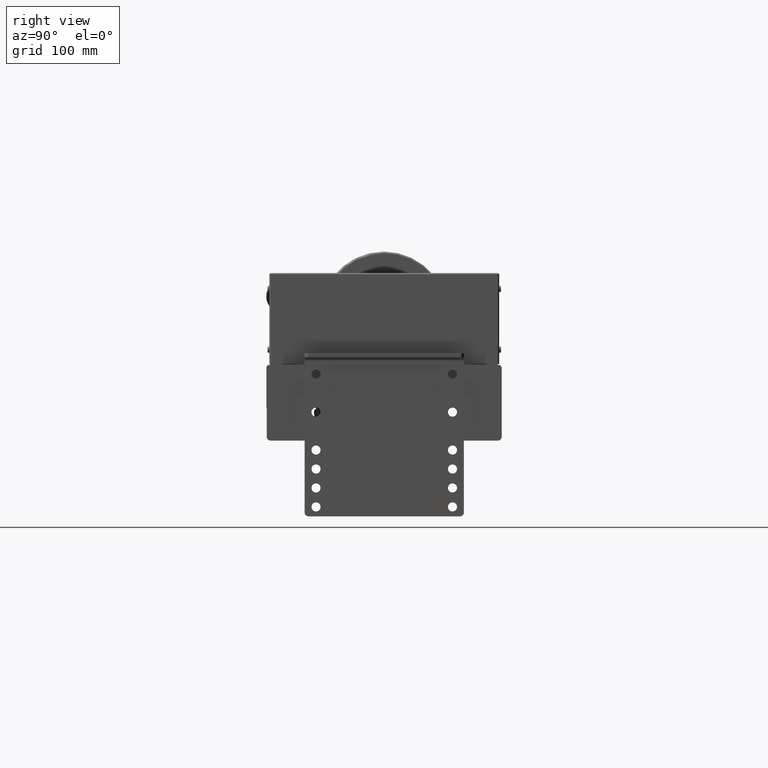
[diagram: clean part render]
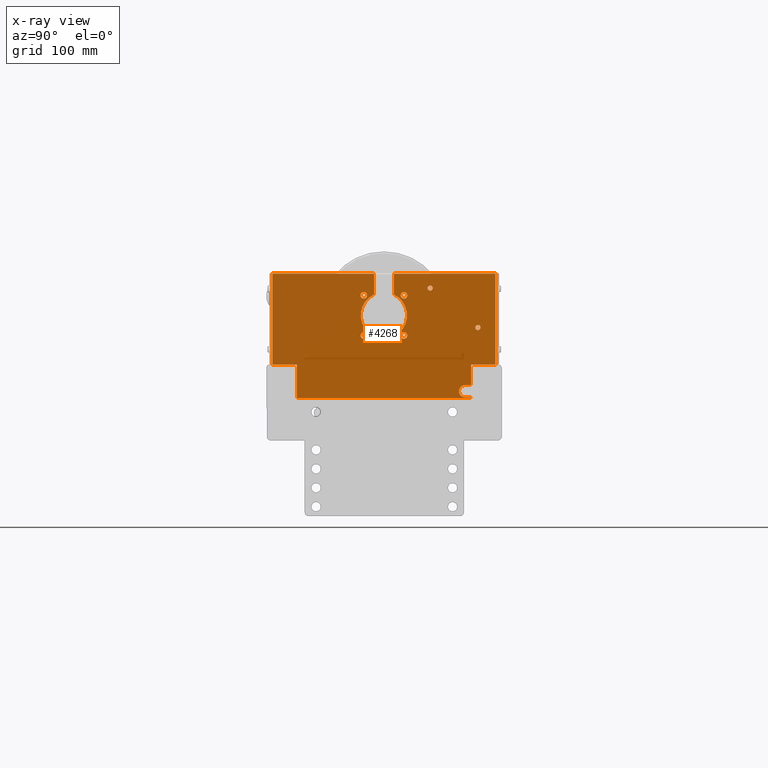
[diagram: x-ray — body ghosted, one internal face saturated and labeled with its STEP entity id]
A machine part, right view, then the same camera in x-ray: the body is ghosted and one INTERNAL B-rep face — a face not visible from any outside direction — is saturated and labeled: STEP entity #4268.
In plain terms, the highlighted planar face has unit normal (-1, -0, 0).
Its self-contained STEP definition (entity closure, byte-faithful):
#2570=CARTESIAN_POINT('',(-22.141504294496144,3.483495705504765,1.500000000000000));
#2571=VERTEX_POINT('',#2570);
#2580=CARTESIAN_POINT('',(-30.891504294496144,3.483495705504765,1.500000000000000));
#2581=VERTEX_POINT('',#2580);
#2582=CARTESIAN_POINT('',(-26.516504294496144,3.483495705504765,1.500000000000000));
#2583=DIRECTION('',(0.0,0.0,1.0));
#2584=DIRECTION('',(1.0,0.0,0.0));
#2585=AXIS2_PLACEMENT_3D('',#2582,#2583,#2584);
#2586=CIRCLE('',#2585,4.375000000000000);
#2587=EDGE_CURVE('',#2571,#2581,#2586,.T.);
#2612=CARTESIAN_POINT('',(30.891504294494780,3.483495705504765,1.500000000000000));
#2613=VERTEX_POINT('',#2612);
#2622=CARTESIAN_POINT('',(22.141504294494780,3.483495705504765,1.500000000000000));
#2623=VERTEX_POINT('',#2622);
#2624=CARTESIAN_POINT('',(26.516504294494780,3.483495705504765,1.500000000000000));
#2625=DIRECTION('',(0.0,0.0,1.0));
#2626=DIRECTION('',(1.0,0.0,0.0));
#2627=AXIS2_PLACEMENT_3D('',#2624,#2625,#2626);
#2628=CIRCLE('',#2627,4.375000000000000);
#2629=EDGE_CURVE('',#2613,#2623,#2628,.T.);
#2654=CARTESIAN_POINT('',(30.891504294494780,56.516504294495917,1.500000000000000));
#2655=VERTEX_POINT('',#2654);
#2664=CARTESIAN_POINT('',(22.141504294494780,56.516504294495917,1.500000000000000));
#2665=VERTEX_POINT('',#2664);
#2666=CARTESIAN_POINT('',(26.516504294494780,56.516504294495917,1.500000000000000));
#2667=DIRECTION('',(0.0,0.0,1.0));
#2668=DIRECTION('',(1.0,0.0,0.0));
#2669=AXIS2_PLACEMENT_3D('',#2666,#2667,#2668);
#2670=CIRCLE('',#2669,4.375000000000000);
#2671=EDGE_CURVE('',#2655,#2665,#2670,.T.);
#2696=CARTESIAN_POINT('',(-22.141504294496372,56.516504294495917,1.500000000000000));
#2697=VERTEX_POINT('',#2696);
#2706=CARTESIAN_POINT('',(-30.891504294496372,56.516504294495917,1.500000000000000));
#2707=VERTEX_POINT('',#2706);
#2708=CARTESIAN_POINT('',(-26.516504294496372,56.516504294495917,1.500000000000000));
#2709=DIRECTION('',(0.0,0.0,1.0));
#2710=DIRECTION('',(1.0,0.0,0.0));
#2711=AXIS2_PLACEMENT_3D('',#2708,#2709,#2710);
#2712=CIRCLE('',#2711,4.375000000000000);
#2713=EDGE_CURVE('',#2697,#2707,#2712,.T.);
#2824=CARTESIAN_POINT('',(-57.550000000000907,66.000000000000227,1.500000000000000));
#2825=VERTEX_POINT('',#2824);
#2841=CARTESIAN_POINT('',(-64.450000000000912,66.000000000000227,1.500000000000000));
#2842=VERTEX_POINT('',#2841);
#2849=CARTESIAN_POINT('',(-61.000000000000909,66.000000000000227,1.500000000000000));
#2850=DIRECTION('',(0.0,0.0,-1.0));
#2851=DIRECTION('',(1.0,0.0,0.0));
#2852=AXIS2_PLACEMENT_3D('',#2849,#2850,#2851);
#2853=CIRCLE('',#2852,3.450000000000000);
#2854=EDGE_CURVE('',#2825,#2842,#2853,.T.);
#2866=CARTESIAN_POINT('',(-120.550000000000910,14.000000000000227,1.500000000000000));
#2867=VERTEX_POINT('',#2866);
#2883=CARTESIAN_POINT('',(-127.450000000000910,14.000000000000227,1.500000000000000));
#2884=VERTEX_POINT('',#2883);
#2891=CARTESIAN_POINT('',(-124.000000000000910,14.000000000000227,1.500000000000000));
#2892=DIRECTION('',(0.0,0.0,-1.0));
#2893=DIRECTION('',(1.0,0.0,0.0));
#2894=AXIS2_PLACEMENT_3D('',#2891,#2892,#2893);
#2895=CIRCLE('',#2894,3.450000000000000);
#2896=EDGE_CURVE('',#2867,#2884,#2895,.T.);
#3166=CARTESIAN_POINT('',(114.999999999999090,-34.999999999999773,1.500000000000000));
#3167=VERTEX_POINT('',#3166);
#3174=CARTESIAN_POINT('',(115.0,-78.999999999999773,1.500000000000000));
#3175=VERTEX_POINT('',#3174);
#3176=CARTESIAN_POINT('',(114.999999999999090,-34.999999999999773,1.500000000000000));
#3177=DIRECTION('',(0.0,-1.0,0.0));
#3178=VECTOR('',#3177,44.0);
#3179=LINE('',#3176,#3178);
#3180=EDGE_CURVE('',#3167,#3175,#3179,.T.);
#3214=CARTESIAN_POINT('',(-115.000000000001360,-78.999999999999773,1.500000000000000));
#3215=VERTEX_POINT('',#3214);
#3232=CARTESIAN_POINT('',(115.0,-78.999999999999773,1.500000000000000));
#3233=DIRECTION('',(-1.0,0.0,0.0));
#3234=VECTOR('',#3233,230.000000000001360);
#3235=LINE('',#3232,#3234);
#3236=EDGE_CURVE('',#3175,#3215,#3235,.T.);
#3365=CARTESIAN_POINT('',(-124.000000000000910,14.000000000000227,1.500000000000000));
#3366=DIRECTION('',(0.0,0.0,-1.0));
#3367=DIRECTION('',(1.0,0.0,0.0));
#3368=AXIS2_PLACEMENT_3D('',#3365,#3366,#3367);
#3369=CIRCLE('',#3368,3.450000000000000);
#3370=EDGE_CURVE('',#2884,#2867,#3369,.T.);
#3389=CARTESIAN_POINT('',(-61.000000000000909,66.000000000000227,1.500000000000000));
#3390=DIRECTION('',(0.0,0.0,-1.0));
#3391=DIRECTION('',(1.0,0.0,0.0));
#3392=AXIS2_PLACEMENT_3D('',#3389,#3390,#3391);
#3393=CIRCLE('',#3392,3.450000000000000);
#3394=EDGE_CURVE('',#2842,#2825,#3393,.T.);
#3460=CARTESIAN_POINT('',(147.000000000000910,-34.999999999999773,1.500000000000000));
#3461=VERTEX_POINT('',#3460);
#3462=CARTESIAN_POINT('',(147.000000000000910,85.000000000000341,1.500000000000000));
#3463=VERTEX_POINT('',#3462);
#3464=CARTESIAN_POINT('',(147.000000000000910,-34.999999999999773,1.500000000000000));
#3465=DIRECTION('',(0.0,1.0,0.0));
#3466=VECTOR('',#3465,120.000000000000110);
#3467=LINE('',#3464,#3466);
#3468=EDGE_CURVE('',#3461,#3463,#3467,.T.);
#3543=CARTESIAN_POINT('',(-147.000000000000910,85.000000000000227,1.500000000000000));
#3544=VERTEX_POINT('',#3543);
#3545=CARTESIAN_POINT('',(-147.000000000001020,-34.999999999999773,1.500000000000000));
#3546=VERTEX_POINT('',#3545);
#3547=CARTESIAN_POINT('',(-147.000000000000910,85.000000000000227,1.500000000000000));
#3548=DIRECTION('',(0.0,-1.0,0.0));
#3549=VECTOR('',#3548,120.0);
#3550=LINE('',#3547,#3549);
#3551=EDGE_CURVE('',#3544,#3546,#3550,.T.);
#3649=CARTESIAN_POINT('',(12.999999999999091,85.000000000000455,1.500000000000000));
#3650=VERTEX_POINT('',#3649);
#3657=CARTESIAN_POINT('',(12.999999999999091,85.000000000000455,1.500000000000000));
#3658=DIRECTION('',(1.0,0.0,0.0));
#3659=VECTOR('',#3658,134.000000000001820);
#3660=LINE('',#3657,#3659);
#3661=EDGE_CURVE('',#3650,#3463,#3660,.T.);
#3679=CARTESIAN_POINT('',(147.000000000000910,-34.999999999999773,1.500000000000000));
#3680=DIRECTION('',(-1.0,0.0,0.0));
#3681=VECTOR('',#3680,32.000000000001819);
#3682=LINE('',#3679,#3681);
#3683=EDGE_CURVE('',#3461,#3167,#3682,.T.);
#3710=CARTESIAN_POINT('',(-13.000000000000682,85.000000000000227,1.500000000000000));
#3711=VERTEX_POINT('',#3710);
#3712=CARTESIAN_POINT('',(-147.000000000000910,85.000000000000227,1.500000000000000));
#3713=DIRECTION('',(1.0,0.0,0.0));
#3714=VECTOR('',#3713,134.000000000000230);
#3715=LINE('',#3712,#3714);
#3716=EDGE_CURVE('',#3544,#3711,#3715,.T.);
#3900=CARTESIAN_POINT('',(-115.000000000000910,-77.999999999999773,1.500000000000000));
#3901=VERTEX_POINT('',#3900);
#3902=CARTESIAN_POINT('',(-115.000000000001360,-78.999999999999773,1.500000000000000));
#3903=DIRECTION('',(4.547474E-013,1.0,0.0));
#3904=VECTOR('',#3903,1.0);
#3905=LINE('',#3902,#3904);
#3906=EDGE_CURVE('',#3215,#3901,#3905,.T.);
#3923=CARTESIAN_POINT('',(-13.000000000001137,57.590759322643180,1.500000000000000));
#3924=VERTEX_POINT('',#3923);
#3925=CARTESIAN_POINT('',(-13.000000000000682,85.000000000000227,1.500000000000000));
#3926=DIRECTION('',(0.0,-1.0,0.0));
#3927=VECTOR('',#3926,27.409240677357047);
#3928=LINE('',#3925,#3927);
#3929=EDGE_CURVE('',#3711,#3924,#3928,.T.);
#3947=CARTESIAN_POINT('',(12.999999999999091,57.590759322643180,1.500000000000000));
#3948=VERTEX_POINT('',#3947);
#3949=CARTESIAN_POINT('',(1.818989E-012,29.999999999996817,1.500000000000000));
#3950=DIRECTION('',(0.0,0.0,1.0));
#3951=DIRECTION('',(1.0,0.0,0.0));
#3952=AXIS2_PLACEMENT_3D('',#3949,#3950,#3951);
#3953=CIRCLE('',#3952,30.500000000000000);
#3954=EDGE_CURVE('',#3924,#3948,#3953,.T.);
#3972=CARTESIAN_POINT('',(12.999999999999091,57.590759322643180,1.500000000000000));
#3973=DIRECTION('',(0.0,1.0,0.0));
#3974=VECTOR('',#3973,27.409240677357275);
#3975=LINE('',#3972,#3974);
#3976=EDGE_CURVE('',#3948,#3650,#3975,.T.);
#4013=CARTESIAN_POINT('',(-107.000000000000910,-77.999999999999773,1.500000000000000));
#4014=VERTEX_POINT('',#4013);
#4015=CARTESIAN_POINT('',(-115.000000000000910,-77.999999999999773,1.500000000000000));
#4016=DIRECTION('',(1.0,0.0,0.0));
#4017=VECTOR('',#4016,8.0);
#4018=LINE('',#4015,#4017);
#4019=EDGE_CURVE('',#3901,#4014,#4018,.T.);
#4037=CARTESIAN_POINT('',(-107.000000000000910,-61.999999999999773,1.500000000000000));
#4038=VERTEX_POINT('',#4037);
#4039=CARTESIAN_POINT('',(-107.000000000000910,-69.999999999999773,1.500000000000000));
#4040=DIRECTION('',(0.0,0.0,1.0));
#4041=DIRECTION('',(1.0,0.0,0.0));
#4042=AXIS2_PLACEMENT_3D('',#4039,#4040,#4041);
#4043=CIRCLE('',#4042,8.0);
#4044=EDGE_CURVE('',#4014,#4038,#4043,.T.);
#4062=CARTESIAN_POINT('',(-115.000000000000910,-61.999999999999773,1.500000000000000));
#4063=VERTEX_POINT('',#4062);
#4064=CARTESIAN_POINT('',(-107.000000000000910,-61.999999999999773,1.500000000000000));
#4065=DIRECTION('',(-1.0,0.0,0.0));
#4066=VECTOR('',#4065,8.0);
#4067=LINE('',#4064,#4066);
#4068=EDGE_CURVE('',#4038,#4063,#4067,.T.);
#4086=CARTESIAN_POINT('',(-115.000000000000910,-34.999999999999773,1.500000000000000));
#4087=VERTEX_POINT('',#4086);
#4088=CARTESIAN_POINT('',(-115.000000000000910,-61.999999999999773,1.500000000000000));
#4089=DIRECTION('',(0.0,1.0,0.0));
#4090=VECTOR('',#4089,27.0);
#4091=LINE('',#4088,#4090);
#4092=EDGE_CURVE('',#4063,#4087,#4091,.T.);
#4112=CARTESIAN_POINT('',(-115.000000000000910,-34.999999999999773,1.500000000000000));
#4113=DIRECTION('',(-1.0,0.0,0.0));
#4114=VECTOR('',#4113,32.000000000000114);
#4115=LINE('',#4112,#4114);
#4116=EDGE_CURVE('',#4087,#3546,#4115,.T.);
#4157=CARTESIAN_POINT('',(-26.516504294496372,56.516504294495917,1.500000000000000));
#4158=DIRECTION('',(0.0,0.0,1.0));
#4159=DIRECTION('',(1.0,0.0,0.0));
#4160=AXIS2_PLACEMENT_3D('',#4157,#4158,#4159);
#4161=CIRCLE('',#4160,4.375000000000000);
#4162=EDGE_CURVE('',#2707,#2697,#4161,.T.);
#4175=CARTESIAN_POINT('',(26.516504294494780,56.516504294495917,1.500000000000000));
#4176=DIRECTION('',(0.0,0.0,1.0));
#4177=DIRECTION('',(1.0,0.0,0.0));
#4178=AXIS2_PLACEMENT_3D('',#4175,#4176,#4177);
#4179=CIRCLE('',#4178,4.375000000000000);
#4180=EDGE_CURVE('',#2665,#2655,#4179,.T.);
#4193=CARTESIAN_POINT('',(26.516504294494780,3.483495705504765,1.500000000000000));
#4194=DIRECTION('',(0.0,0.0,1.0));
#4195=DIRECTION('',(1.0,0.0,0.0));
#4196=AXIS2_PLACEMENT_3D('',#4193,#4194,#4195);
#4197=CIRCLE('',#4196,4.375000000000000);
#4198=EDGE_CURVE('',#2623,#2613,#4197,.T.);
#4211=CARTESIAN_POINT('',(-26.516504294496144,3.483495705504765,1.500000000000000));
#4212=DIRECTION('',(0.0,0.0,1.0));
#4213=DIRECTION('',(1.0,0.0,0.0));
#4214=AXIS2_PLACEMENT_3D('',#4211,#4212,#4213);
#4215=CIRCLE('',#4214,4.375000000000000);
#4216=EDGE_CURVE('',#2581,#2571,#4215,.T.);
#4221=CARTESIAN_POINT('',(-2.165992825263629,6.983821610617270,1.500000000000000));
#4222=DIRECTION('',(0.0,0.0,1.0));
#4223=DIRECTION('',(1.0,0.0,0.0));
#4224=AXIS2_PLACEMENT_3D('',#4221,#4222,#4223);
#4225=PLANE('',#4224);
#4226=ORIENTED_EDGE('',*,*,#3236,.F.);
#4227=ORIENTED_EDGE('',*,*,#3180,.F.);
#4228=ORIENTED_EDGE('',*,*,#3683,.F.);
#4229=ORIENTED_EDGE('',*,*,#3468,.T.);
#4230=ORIENTED_EDGE('',*,*,#3661,.F.);
#4231=ORIENTED_EDGE('',*,*,#3976,.F.);
#4232=ORIENTED_EDGE('',*,*,#3954,.F.);
#4233=ORIENTED_EDGE('',*,*,#3929,.F.);
#4234=ORIENTED_EDGE('',*,*,#3716,.F.);
#4235=ORIENTED_EDGE('',*,*,#3551,.T.);
#4236=ORIENTED_EDGE('',*,*,#4116,.F.);
#4237=ORIENTED_EDGE('',*,*,#4092,.F.);
#4238=ORIENTED_EDGE('',*,*,#4068,.F.);
#4239=ORIENTED_EDGE('',*,*,#4044,.F.);
#4240=ORIENTED_EDGE('',*,*,#4019,.F.);
#4241=ORIENTED_EDGE('',*,*,#3906,.F.);
#4242=EDGE_LOOP('',(#4226,#4227,#4228,#4229,#4230,#4231,#4232,#4233,#4234,#4235,#4236,#4237,#4238,#4239,#4240,#4241));
#4243=FACE_OUTER_BOUND('',#4242,.T.);
#4244=ORIENTED_EDGE('',*,*,#3370,.T.);
#4245=ORIENTED_EDGE('',*,*,#2896,.T.);
#4246=EDGE_LOOP('',(#4244,#4245));
#4247=FACE_BOUND('',#4246,.T.);
#4248=ORIENTED_EDGE('',*,*,#3394,.T.);
#4249=ORIENTED_EDGE('',*,*,#2854,.T.);
#4250=EDGE_LOOP('',(#4248,#4249));
#4251=FACE_BOUND('',#4250,.T.);
#4252=ORIENTED_EDGE('',*,*,#2587,.F.);
#4253=ORIENTED_EDGE('',*,*,#4216,.F.);
#4254=EDGE_LOOP('',(#4252,#4253));
#4255=FACE_BOUND('',#4254,.T.);
#4256=ORIENTED_EDGE('',*,*,#2629,.F.);
#4257=ORIENTED_EDGE('',*,*,#4198,.F.);
#4258=EDGE_LOOP('',(#4256,#4257));
#4259=FACE_BOUND('',#4258,.T.);
#4260=ORIENTED_EDGE('',*,*,#2671,.F.);
#4261=ORIENTED_EDGE('',*,*,#4180,.F.);
#4262=EDGE_LOOP('',(#4260,#4261));
#4263=FACE_BOUND('',#4262,.T.);
#4264=ORIENTED_EDGE('',*,*,#2713,.F.);
#4265=ORIENTED_EDGE('',*,*,#4162,.F.);
#4266=EDGE_LOOP('',(#4264,#4265));
#4267=FACE_BOUND('',#4266,.T.);
#4268=ADVANCED_FACE('',(#4243,#4247,#4251,#4255,#4259,#4263,#4267),#4225,.T.);